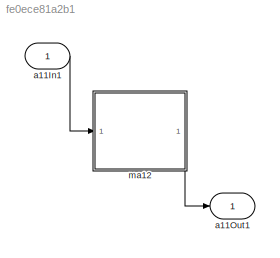
MODEL slx_fe0ece81a2b1
KIND model
CONFIG AbsTol = auto
CONFIG EnableMultiTasking = off
CONFIG FixedStep = auto
CONFIG MaxStep = auto
CONFIG MinStep = auto
CONFIG RelTol = 1e-3
CONFIG SampleTimeConstraint = Unconstrained
CONFIG Solver = VariableStepAuto
CONFIG SolverName = VariableStepAuto
CONFIG StartTime = 0.0
CONFIG StopTime = 10.0
BLOCK [Inport] a11In1
  IconDisplay = Port number
  OutDataTypeStr = double
BLOCK [Outport] a11Out1
  IconDisplay = Port number
  OutDataTypeStr = double
BLOCK [ModelReference] ma12
  ModelNameDialog = Mission_A12
  ModelReferenceVersion = 1.1
  Ports = [1, 1]
LINE a11In1:1 -> ma12:1
LINE ma12:1 -> a11Out1:1
